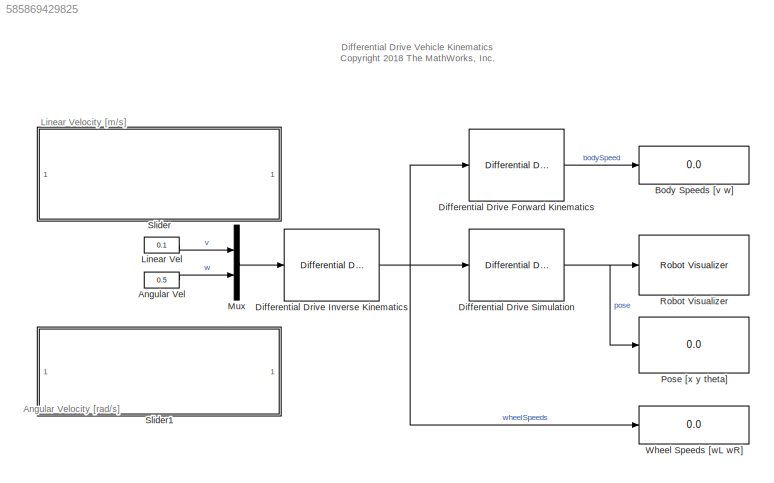
MODEL slx_585869429825
KIND model
CONFIG AbsTol = auto
CONFIG EnableMultiTasking = on
CONFIG FixedStep = 0.01
CONFIG MaxStep = auto
CONFIG MinStep = auto
CONFIG PreLoadFcn = sampleTime = 0.05;\n\n% Vehicle Parameters\nR = 0.1;\nL = 0.5;
CONFIG RelTol = 1e-3
CONFIG SampleTimeConstraint = Unconstrained
CONFIG Solver = VariableStepAuto
CONFIG SolverName = VariableStepAuto
CONFIG StartTime = 0.0
CONFIG StopTime = inf
BLOCK [Constant] Angular Vel
  Value = 0.5
BLOCK [Display] Body Speeds [v w]
  Decimation = 1
  Ports = [1]
BLOCK [Reference] Differential Drive Forward Kinematics  REF=mobileRoboticsLib/Kinematic Models/Differential Drive/Differential Drive
Forward Kinematics
  Ports = [1, 1]
  SourceBlock = mobileRoboticsLib/Kinematic Models/Differential Drive/Differential Drive\nForward Kinematics
  SourceProductName = Mobile Robotics Simulation Library
  SourceType = Differential Drive Forward Kinematics
BLOCK [Reference] Differential Drive Inverse Kinematics  REF=mobileRoboticsLib/Kinematic Models/Differential Drive/Differential Drive
Inverse Kinematics
  Ports = [1, 1]
  SourceBlock = mobileRoboticsLib/Kinematic Models/Differential Drive/Differential Drive\nInverse Kinematics
  SourceProductName = Mobile Robotics Simulation Library
  SourceType = Differential Drive Inverse Kinematics
BLOCK [Reference] Differential Drive Simulation  REF=mobileRoboticsLib/Kinematic Models/Differential Drive/Differential Drive Simulation
  Ports = [1, 1]
  SourceBlock = mobileRoboticsLib/Kinematic Models/Differential Drive/Differential Drive Simulation
  SourceProductName = Mobile Robotics Simulation Library
  SourceType = Differential Drive Simulation
BLOCK [Constant] Linear Vel
  Value = 0.1
BLOCK [Mux] Mux
  DisplayOption = bar
  Inputs = 2
  Ports = [2, 1]
BLOCK [Display] Pose [x y theta]
  Decimation = 1
  Ports = [1]
BLOCK [Reference] Robot Visualizer  REF=mobileRoboticsLib/Environments/Robot Visualizer
  Ports = [1]
  Priority = 99
  SourceBlock = mobileRoboticsLib/Environments/Robot Visualizer
  SourceProductName = Mobile Robotics Simulation Library
  SourceType = Visualizer2D
BLOCK [SubSystem] Slider
  DialogController = hmiCreateDDGDialog
  IsWebBlock = on
  MaskHideContents = on
  Ports = []
  RequestExecContextInheritance = off
BLOCK [SubSystem] Slider1
  DialogController = hmiCreateDDGDialog
  IsWebBlock = on
  MaskHideContents = on
  Ports = []
  RequestExecContextInheritance = off
BLOCK [Display] Wheel Speeds [wL wR]
  Decimation = 1
  Ports = [1]
ANNOTATION (root): Angular Velocity [rad/s]
ANNOTATION (root): Differential Drive Vehicle Kinematics <copyright redacted>
ANNOTATION (root): Linear Velocity [m/s]
LINE Angular Vel:1 -> Mux:2
LINE Differential Drive Forward Kinematics:1 -> Body Speeds [v w]:1
NET Differential Drive Inverse Kinematics:1 -> Differential Drive Forward Kinematics:1, Differential Drive Simulation:1, Wheel Speeds [wL wR]:1
NET Differential Drive Simulation:1 -> Pose [x y theta]:1, Robot Visualizer:1
LINE Linear Vel:1 -> Mux:1
LINE Mux:1 -> Differential Drive Inverse Kinematics:1
note: NET lines group one-source signal fan-out (src -> all destinations, sorted); 1:1 wires keep LINE
